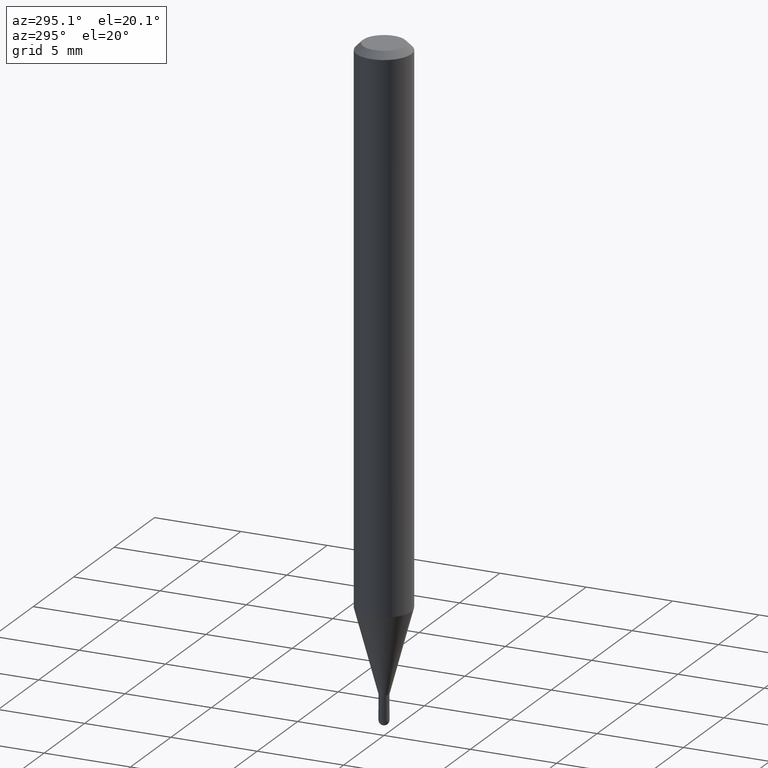
[diagram: clean part render]
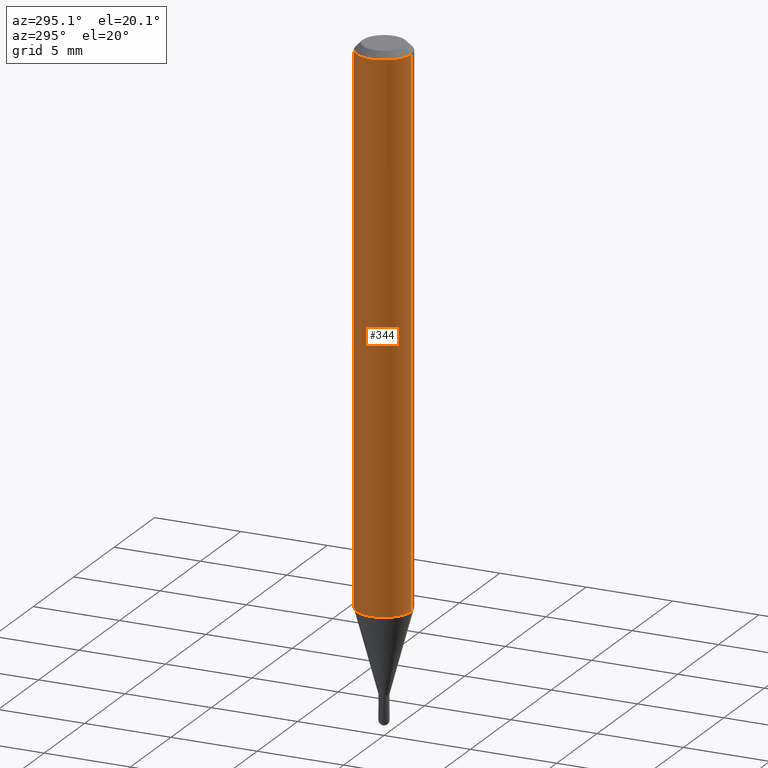
[diagram: same view with one face highlighted and labeled with its STEP entity id]
A machine part, auxiliary view. The second image highlights one B-rep face of the part: STEP entity #344.
In plain terms, the highlighted cylindrical surface (edge-blend (fillet) strip) has radius 1.5875 mm, axis along (-0, 0, 1).
Its self-contained STEP definition (entity closure, byte-faithful):
#6 = ORIENTED_EDGE ( 'NONE', *, *, #489, .T. ) ;
#9 = AXIS2_PLACEMENT_3D ( 'NONE', #478, #249, #335 ) ;
#64 = VECTOR ( 'NONE', #184, 39.37007874015748143 ) ;
#72 = EDGE_CURVE ( 'NONE', #427, #185, #181, .T. ) ;
#88 = DIRECTION ( 'NONE',  ( -6.982962677686265922E-15, -1.000000000000000000, 4.370956789862821150E-15 ) ) ;
#93 = VERTEX_POINT ( 'NONE', #405 ) ;
#106 = EDGE_CURVE ( 'NONE', #280, #427, #212, .T. ) ;
#113 = ORIENTED_EDGE ( 'NONE', *, *, #72, .F. ) ;
#126 = DIRECTION ( 'NONE',  ( -2.445463946140640432E-29, 3.491488298703480451E-15, 1.000000000000000000 ) ) ;
#141 = EDGE_CURVE ( 'NONE', #280, #93, #498, .T. ) ;
#174 = CARTESIAN_POINT ( 'NONE',  ( 4.440892098500625669E-16, 0.06250000000000000000, -2.182180186689675282E-16 ) ) ;
#178 = LINE ( 'NONE', #304, #64 ) ;
#181 = CIRCLE ( 'NONE', #9, 0.06250000000000000000 ) ;
#184 = DIRECTION ( 'NONE',  ( -2.445463946140640432E-29, 3.491488298703480845E-15, 1.000000000000000000 ) ) ;
#185 = VERTEX_POINT ( 'NONE', #310 ) ;
#199 = FACE_OUTER_BOUND ( 'NONE', #502, .T. ) ;
#212 = LINE ( 'NONE', #174, #332 ) ;
#242 = DIRECTION ( 'NONE',  ( -2.445463946140640432E-29, 3.491488298703480451E-15, 1.000000000000000000 ) ) ;
#248 = CYLINDRICAL_SURFACE ( 'NONE', #282, 0.06250000000000000000 ) ;
#249 = DIRECTION ( 'NONE',  ( -2.445463946140640432E-29, 3.491488298703480451E-15, 1.000000000000000000 ) ) ;
#256 = CARTESIAN_POINT ( 'NONE',  ( 3.034002526478456227E-29, -4.331768757480223659E-15, -1.240665408813992121 ) ) ;
#279 = DIRECTION ( 'NONE',  ( -6.982962677686265922E-15, -1.000000000000000000, 3.491488298703480451E-15 ) ) ;
#280 = VERTEX_POINT ( 'NONE', #320 ) ;
#282 = AXIS2_PLACEMENT_3D ( 'NONE', #469, #242, #279 ) ;
#283 = ORIENTED_EDGE ( 'NONE', *, *, #141, .T. ) ;
#297 = CARTESIAN_POINT ( 'NONE',  ( 4.440892098500930859E-16, 0.06249999999999995143, -0.01500000000000028394 ) ) ;
#304 = CARTESIAN_POINT ( 'NONE',  ( -4.364351673553916201E-16, -0.06250000000000000000, 2.182180186689675282E-16 ) ) ;
#310 = CARTESIAN_POINT ( 'NONE',  ( -4.364351673553912750E-16, -0.06250000000000005551, -0.01499999999999984852 ) ) ;
#320 = CARTESIAN_POINT ( 'NONE',  ( 4.440892098500927901E-16, 0.06249999999999567013, -1.240665408813992343 ) ) ;
#332 = VECTOR ( 'NONE', #509, 39.37007874015748143 ) ;
#335 = DIRECTION ( 'NONE',  ( -6.982962677686265922E-15, -1.000000000000000000, 3.483106191921935554E-15 ) ) ;
#341 = AXIS2_PLACEMENT_3D ( 'NONE', #256, #126, #88 ) ;
#344 = ADVANCED_FACE ( 'NONE', ( #199 ), #248, .T. ) ;
#405 = CARTESIAN_POINT ( 'NONE',  ( -4.364351673553613476E-16, -0.06250000000000432987, -1.240665408813991899 ) ) ;
#427 = VERTEX_POINT ( 'NONE', #297 ) ;
#469 = CARTESIAN_POINT ( 'NONE',  ( 0.000000000000000000, 0.000000000000000000, 0.000000000000000000 ) ) ;
#478 = CARTESIAN_POINT ( 'NONE',  ( 3.668195919210977323E-31, -5.237232448055243799E-17, -0.01500000000000006710 ) ) ;
#489 = EDGE_CURVE ( 'NONE', #93, #185, #178, .T. ) ;
#494 = ORIENTED_EDGE ( 'NONE', *, *, #106, .F. ) ;
#498 = CIRCLE ( 'NONE', #341, 0.06250000000000000000 ) ;
#502 = EDGE_LOOP ( 'NONE', ( #494, #283, #6, #113 ) ) ;
#509 = DIRECTION ( 'NONE',  ( -2.445463946140640432E-29, 3.491488298703480845E-15, 1.000000000000000000 ) ) ;